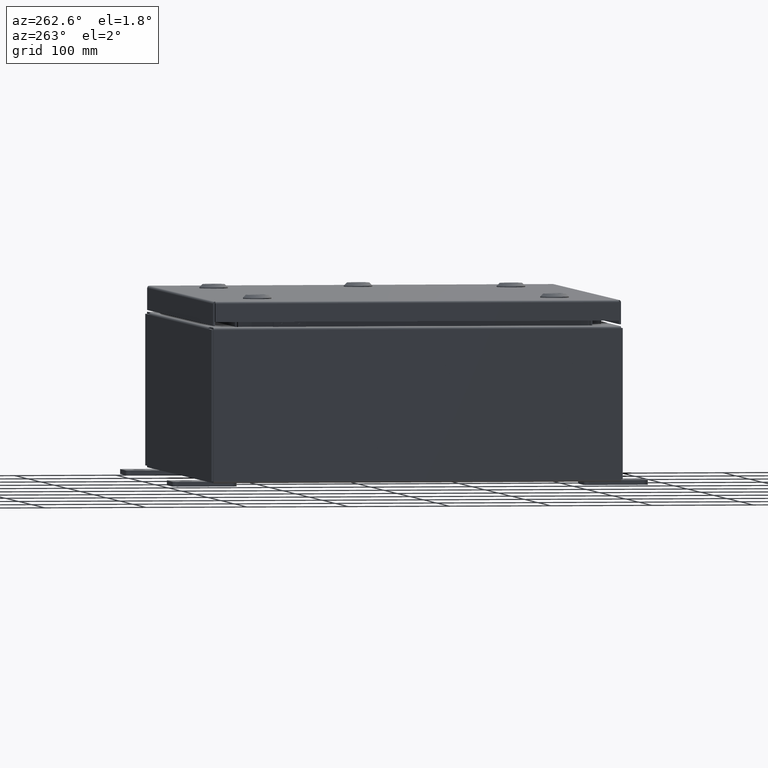
[diagram: clean part render]
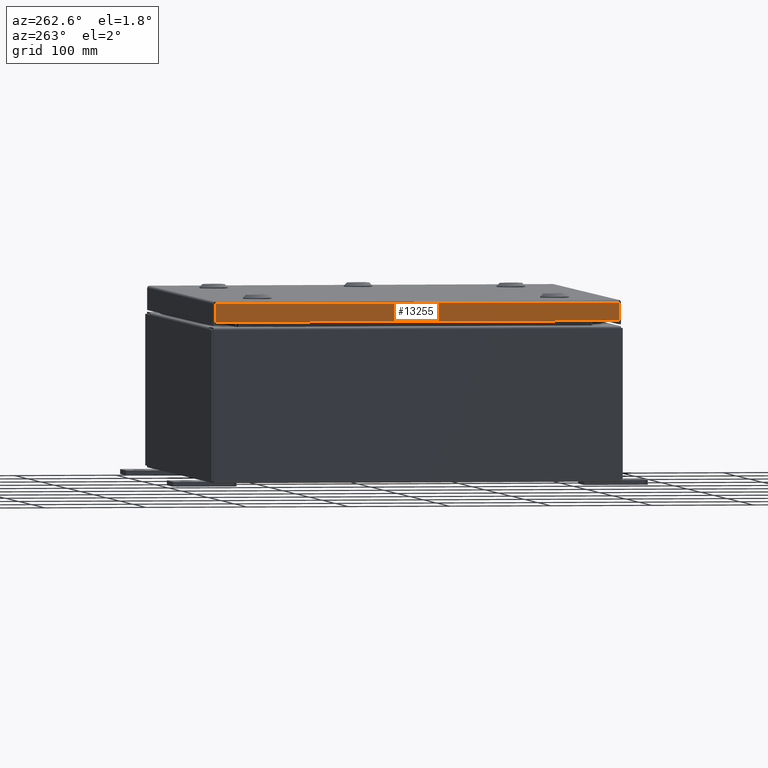
[diagram: same view with one face highlighted and labeled with its STEP entity id]
A machine part, auxiliary view. The second image highlights one B-rep face of the part: STEP entity #13255.
In plain terms, the highlighted planar face has unit normal (1, 0, -0).
Its self-contained STEP definition (entity closure, byte-faithful):
#2772 = EDGE_LOOP ( 'NONE', ( #46018, #26448, #60855, #39483 ) ) ;
#2949 = VERTEX_POINT ( 'NONE', #19837 ) ;
#3482 = DIRECTION ( 'NONE',  ( -3.034122441942816500E-015, 0.0000000000000000000, -1.000000000000000000 ) ) ;
#4910 = EDGE_CURVE ( 'NONE', #51722, #2949, #8079, .T. ) ;
#6594 = DIRECTION ( 'NONE',  ( -3.034122441942816500E-015, 6.982962677686265900E-015, -1.000000000000000000 ) ) ;
#8079 = LINE ( 'NONE', #14596, #19350 ) ;
#12305 = CARTESIAN_POINT ( 'NONE',  ( -9.937499999999998200, 7.848657864376270300, -0.08770000000000026400 ) ) ;
#13255 = ADVANCED_FACE ( 'NONE', ( #25619 ), #41768, .F. ) ;
#13568 = VECTOR ( 'NONE', #6594, 39.37007874015748100 ) ;
#14596 = CARTESIAN_POINT ( 'NONE',  ( -9.937499999999998200, -7.937499999999999100, -0.08770000000000026400 ) ) ;
#16581 = DIRECTION ( 'NONE',  ( -3.034122441942816500E-015, 6.982962677686265900E-015, -1.000000000000000000 ) ) ;
#19350 = VECTOR ( 'NONE', #38517, 39.37007874015748100 ) ;
#19675 = EDGE_CURVE ( 'NONE', #2949, #38838, #34495, .T. ) ;
#19837 = CARTESIAN_POINT ( 'NONE',  ( -9.937499999999998200, -7.848657864376265900, -0.08770000000000026400 ) ) ;
#25619 = FACE_OUTER_BOUND ( 'NONE', #2772, .T. ) ;
#26331 = LINE ( 'NONE', #40230, #13568 ) ;
#26448 = ORIENTED_EDGE ( 'NONE', *, *, #56321, .T. ) ;
#30877 = CARTESIAN_POINT ( 'NONE',  ( -9.937499999999998200, -7.848657864376267700, -0.07470000000000015500 ) ) ;
#31688 = CARTESIAN_POINT ( 'NONE',  ( -9.937500000000000000, 7.848657864376274800, -0.7949999999999973800 ) ) ;
#32326 = DIRECTION ( 'NONE',  ( 1.000000000000000000, 3.654886874889598900E-031, -3.034122441942816500E-015 ) ) ;
#34495 = LINE ( 'NONE', #30877, #58450 ) ;
#34758 = VECTOR ( 'NONE', #54060, 39.37007874015748100 ) ;
#37992 = EDGE_CURVE ( 'NONE', #38838, #42047, #49034, .T. ) ;
#38517 = DIRECTION ( 'NONE',  ( 3.654886874889599300E-031, -1.000000000000000000, -1.077392013397602500E-045 ) ) ;
#38838 = VERTEX_POINT ( 'NONE', #50146 ) ;
#39483 = ORIENTED_EDGE ( 'NONE', *, *, #19675, .F. ) ;
#40230 = CARTESIAN_POINT ( 'NONE',  ( -9.937499999999998200, 7.848657864376270300, 8.523365740232501700E-014 ) ) ;
#41768 = PLANE ( 'NONE',  #58372 ) ;
#42047 = VERTEX_POINT ( 'NONE', #31688 ) ;
#46018 = ORIENTED_EDGE ( 'NONE', *, *, #4910, .F. ) ;
#49034 = LINE ( 'NONE', #58848, #34758 ) ;
#50146 = CARTESIAN_POINT ( 'NONE',  ( -9.937500000000000000, -7.848657864376261500, -0.7949999999999996000 ) ) ;
#51172 = CARTESIAN_POINT ( 'NONE',  ( -9.937499999999998200, 0.0000000000000000000, 3.059669752903974500E-014 ) ) ;
#51722 = VERTEX_POINT ( 'NONE', #12305 ) ;
#54060 = DIRECTION ( 'NONE',  ( 4.379057701015054300E-047, 1.000000000000000000, 1.204594390907076900E-016 ) ) ;
#56321 = EDGE_CURVE ( 'NONE', #51722, #42047, #26331, .T. ) ;
#58372 = AXIS2_PLACEMENT_3D ( 'NONE', #51172, #32326, #3482 ) ;
#58450 = VECTOR ( 'NONE', #16581, 39.37007874015748100 ) ;
#58848 = CARTESIAN_POINT ( 'NONE',  ( -9.937500000000000000, -7.937499999999999100, -0.7949999999999996000 ) ) ;
#60855 = ORIENTED_EDGE ( 'NONE', *, *, #37992, .F. ) ;